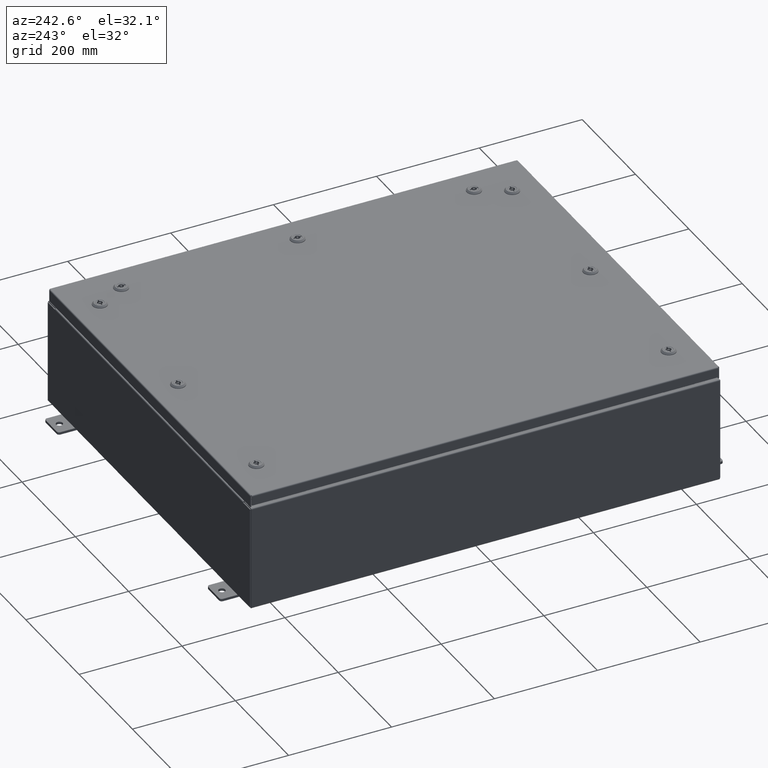
[diagram: clean part render]
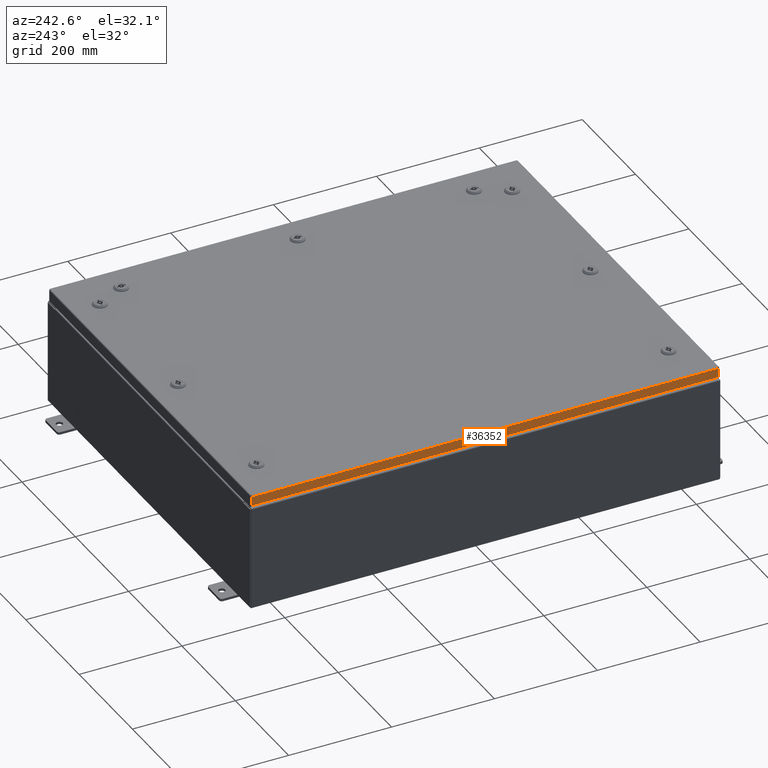
[diagram: same view with one face highlighted and labeled with its STEP entity id]
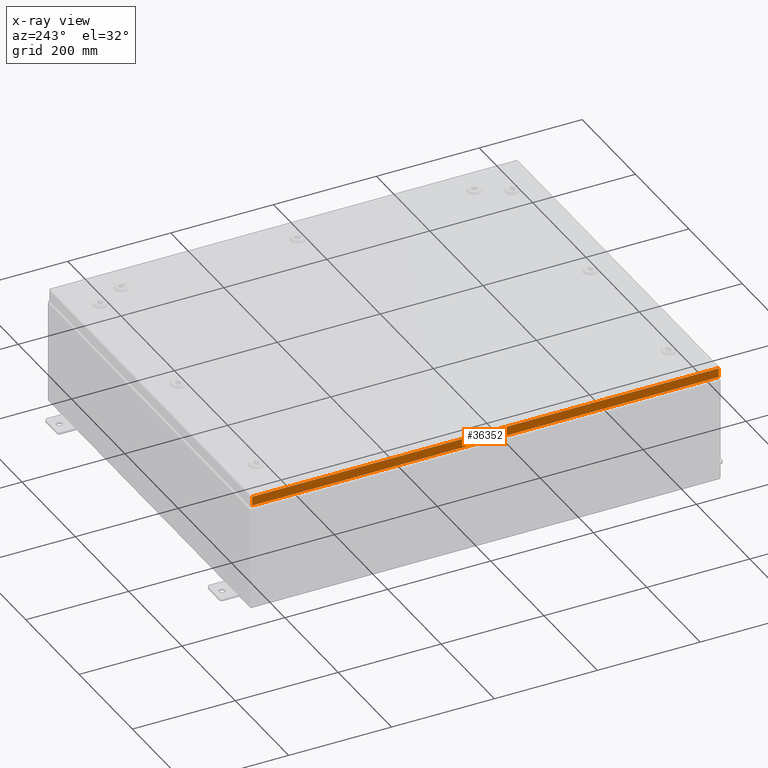
[diagram: x-ray of the same camera — body ghosted, the highlighted face saturated]
A machine part, auxiliary view. The second image highlights one B-rep face of the part: STEP entity #36352.
The next image is the same camera in x-ray: the body ghosted, the highlighted face saturated — about 0% of this face is hidden behind the body in this view.
In plain terms, the highlighted planar face has unit normal (1, 0, -0).
Its self-contained STEP definition (entity closure, byte-faithful):
#1169 = EDGE_LOOP ( 'NONE', ( #13709, #49990, #49586, #64403 ) ) ;
#6793 = DIRECTION ( 'NONE',  ( 3.696729780873900900E-031, -1.000000000000000000, -1.089726516288665400E-045 ) ) ;
#13161 = EDGE_CURVE ( 'NONE', #36356, #29577, #61699, .T. ) ;
#13709 = ORIENTED_EDGE ( 'NONE', *, *, #26547, .F. ) ;
#21485 = DIRECTION ( 'NONE',  ( -3.034122441942816500E-015, 6.982962677686267500E-015, -1.000000000000000000 ) ) ;
#24355 = CARTESIAN_POINT ( 'NONE',  ( -14.93750000000000200, -17.84865786437627100, -0.07469999999999976700 ) ) ;
#24799 = DIRECTION ( 'NONE',  ( -3.034122441942816500E-015, 0.0000000000000000000, -1.000000000000000000 ) ) ;
#25322 = VECTOR ( 'NONE', #29661, 39.37007874015748100 ) ;
#26547 = EDGE_CURVE ( 'NONE', #35208, #36356, #39659, .T. ) ;
#26613 = CARTESIAN_POINT ( 'NONE',  ( -14.93750000000000200, 17.84865786437626800, 1.702195293462633700E-013 ) ) ;
#28478 = LINE ( 'NONE', #39664, #25322 ) ;
#29513 = CARTESIAN_POINT ( 'NONE',  ( -14.93750000000000400, -17.84865786437626800, -0.7949999999999996000 ) ) ;
#29577 = VERTEX_POINT ( 'NONE', #29513 ) ;
#29661 = DIRECTION ( 'NONE',  ( -4.379057701015054300E-047, 1.000000000000000000, 1.218385167906012900E-016 ) ) ;
#30951 = VECTOR ( 'NONE', #21485, 39.37007874015748100 ) ;
#35208 = VERTEX_POINT ( 'NONE', #54274 ) ;
#36352 = ADVANCED_FACE ( 'NONE', ( #63365 ), #39694, .F. ) ;
#36356 = VERTEX_POINT ( 'NONE', #60182 ) ;
#39659 = LINE ( 'NONE', #47502, #53181 ) ;
#39664 = CARTESIAN_POINT ( 'NONE',  ( -14.93750000000000400, -17.93750000000000000, -0.7949999999999997100 ) ) ;
#39694 = PLANE ( 'NONE',  #52037 ) ;
#41399 = VERTEX_POINT ( 'NONE', #61728 ) ;
#47502 = CARTESIAN_POINT ( 'NONE',  ( -14.93750000000000200, -17.93750000000000000, -0.08770000000000004200 ) ) ;
#49586 = ORIENTED_EDGE ( 'NONE', *, *, #56461, .F. ) ;
#49990 = ORIENTED_EDGE ( 'NONE', *, *, #55900, .T. ) ;
#50178 = CARTESIAN_POINT ( 'NONE',  ( -14.93750000000000200, -5.521990110180389400E-030, 4.558301763253240900E-014 ) ) ;
#52037 = AXIS2_PLACEMENT_3D ( 'NONE', #50178, #55287, #24799 ) ;
#53181 = VECTOR ( 'NONE', #6793, 39.37007874015748100 ) ;
#54274 = CARTESIAN_POINT ( 'NONE',  ( -14.93750000000000200, 17.84865786437626800, -0.08770000000000004200 ) ) ;
#54829 = LINE ( 'NONE', #26613, #30951 ) ;
#55287 = DIRECTION ( 'NONE',  ( 1.000000000000000000, 3.696729780873900900E-031, -3.034122441942816500E-015 ) ) ;
#55900 = EDGE_CURVE ( 'NONE', #35208, #41399, #54829, .T. ) ;
#56461 = EDGE_CURVE ( 'NONE', #29577, #41399, #28478, .T. ) ;
#58438 = VECTOR ( 'NONE', #65090, 39.37007874015748100 ) ;
#60182 = CARTESIAN_POINT ( 'NONE',  ( -14.93750000000000200, -17.84865786437626800, -0.08770000000000007000 ) ) ;
#61699 = LINE ( 'NONE', #24355, #58438 ) ;
#61728 = CARTESIAN_POINT ( 'NONE',  ( -14.93750000000000400, 17.84865786437627500, -0.7949999999999954900 ) ) ;
#63365 = FACE_OUTER_BOUND ( 'NONE', #1169, .T. ) ;
#64403 = ORIENTED_EDGE ( 'NONE', *, *, #13161, .F. ) ;
#65090 = DIRECTION ( 'NONE',  ( -3.034122441942816500E-015, 6.982962677686267500E-015, -1.000000000000000000 ) ) ;